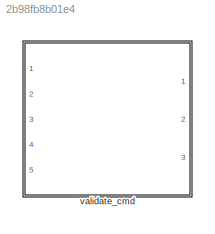
MODEL slx_2b98fb8b01e4
KIND library
CONFIG AbsTol = auto
CONFIG EnableMultiTasking = on
CONFIG FixedStep = 0.001
CONFIG MaxStep = auto
CONFIG MinStep = auto
CONFIG PostLoadFcn = , if any(exist('dsrtsu_mdlpostloadfcn', 'file') == [2, 3, 6]), try dsrtsu_mdlpostloadfcn('Execute', bdroot); catch fprintf('Error in PostLoadFcn (dsrtsu_mdlpostloadfcn) for model "%s":\n %s\n', bdroot, lasterr); end, end, \nif exist('tl_postloadfcn','file'), tl_postloadfcn(gcs,'5.0.0.24'); end
CONFIG PreLoadFcn = if exist('tl_preloadfcn','file'), tl_preloadfcn(gcs,'5.0.0.24'); end
CONFIG RelTol = 1e-3
CONFIG SampleTimeConstraint = Unconstrained
CONFIG Solver = ode1
CONFIG SolverName = ode1
CONFIG StartTime = 0.0
CONFIG StopTime = Inf
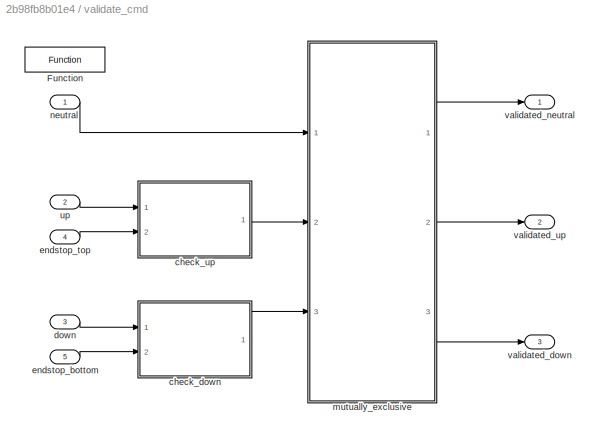
BLOCK [SubSystem] validate_cmd
  Ports = [5, 3]
  RequestExecContextInheritance = off
  TreatAsAtomicUnit = on
BLOCK [Reference] validate_cmd/Function  REF=tllib/Function
  Ports = []
  SourceBlock = tllib/Function
  SourceProductName = dSPACE TargetLink common blockset
  SourceType = TL_Function
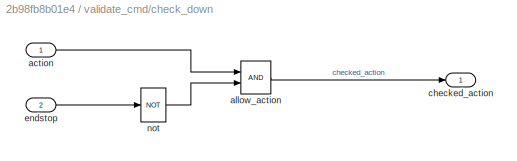
BLOCK [SubSystem] validate_cmd/check_down
  Ports = [2, 1]
  RequestExecContextInheritance = off
BLOCK [Inport] validate_cmd/check_down/action
  IconDisplay = Port number
BLOCK [Logic] validate_cmd/check_down/allow_action
  CopyFcn = if exist('copy_tlblock','file')==2,copy_tlblock(gcbh);end
  DeleteFcn = if exist('delete_tlblock','file')==2,delete_tlblock(gcbh);end
  NameChangeFcn = if exist('rename_tlblock','file')==2,rename_tlblock(gcbh);end
  OpenFcn = if exist('tl_open_blockdlg','file')==2,tl_open_blockdlg(gcbh);else,open_system(gcbh,'force');end
  Ports = [2, 1]
BLOCK [Outport] validate_cmd/check_down/checked_action
  IconDisplay = Port number
BLOCK [Inport] validate_cmd/check_down/endstop
  IconDisplay = Port number
  Port = 2
BLOCK [Logic] validate_cmd/check_down/not
  CopyFcn = if exist('copy_tlblock','file')==2,copy_tlblock(gcbh);end
  DeleteFcn = if exist('delete_tlblock','file')==2,delete_tlblock(gcbh);end
  Inputs = 1
  NameChangeFcn = if exist('rename_tlblock','file')==2,rename_tlblock(gcbh);end
  OpenFcn = if exist('tl_open_blockdlg','file')==2,tl_open_blockdlg(gcbh);else,open_system(gcbh,'force');end
  Operator = NOT
  Ports = [1, 1]
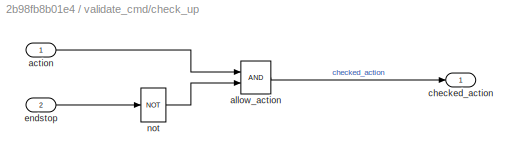
BLOCK [SubSystem] validate_cmd/check_up
  Ports = [2, 1]
  RequestExecContextInheritance = off
BLOCK [Inport] validate_cmd/check_up/action
  IconDisplay = Port number
BLOCK [Logic] validate_cmd/check_up/allow_action
  CopyFcn = if exist('copy_tlblock','file')==2,copy_tlblock(gcbh);end
  DeleteFcn = if exist('delete_tlblock','file')==2,delete_tlblock(gcbh);end
  NameChangeFcn = if exist('rename_tlblock','file')==2,rename_tlblock(gcbh);end
  OpenFcn = if exist('tl_open_blockdlg','file')==2,tl_open_blockdlg(gcbh);else,open_system(gcbh,'force');end
  Ports = [2, 1]
BLOCK [Outport] validate_cmd/check_up/checked_action
  IconDisplay = Port number
BLOCK [Inport] validate_cmd/check_up/endstop
  IconDisplay = Port number
  Port = 2
BLOCK [Logic] validate_cmd/check_up/not
  CopyFcn = if exist('copy_tlblock','file')==2,copy_tlblock(gcbh);end
  DeleteFcn = if exist('delete_tlblock','file')==2,delete_tlblock(gcbh);end
  Inputs = 1
  NameChangeFcn = if exist('rename_tlblock','file')==2,rename_tlblock(gcbh);end
  OpenFcn = if exist('tl_open_blockdlg','file')==2,tl_open_blockdlg(gcbh);else,open_system(gcbh,'force');end
  Operator = NOT
  Ports = [1, 1]
BLOCK [Inport] validate_cmd/down
  CopyFcn = if exist('copy_tlblock','file')==2,copy_tlblock(gcbh);end
  DeleteFcn = if exist('delete_tlblock','file')==2,delete_tlblock(gcbh);end
  IconDisplay = Port number
  NameChangeFcn = if exist('rename_tlblock','file')==2,rename_tlblock(gcbh);end
  OpenFcn = if exist('tl_open_blockdlg','file')==2,tl_open_blockdlg(gcbh);else,open_system(gcbh,'force');end
  Port = 3
BLOCK [Inport] validate_cmd/endstop_bottom
  CopyFcn = if exist('copy_tlblock','file')==2,copy_tlblock(gcbh);end
  DeleteFcn = if exist('delete_tlblock','file')==2,delete_tlblock(gcbh);end
  IconDisplay = Port number
  NameChangeFcn = if exist('rename_tlblock','file')==2,rename_tlblock(gcbh);end
  OpenFcn = if exist('tl_open_blockdlg','file')==2,tl_open_blockdlg(gcbh);else,open_system(gcbh,'force');end
  Port = 5
BLOCK [Inport] validate_cmd/endstop_top
  CopyFcn = if exist('copy_tlblock','file')==2,copy_tlblock(gcbh);end
  DeleteFcn = if exist('delete_tlblock','file')==2,delete_tlblock(gcbh);end
  IconDisplay = Port number
  NameChangeFcn = if exist('rename_tlblock','file')==2,rename_tlblock(gcbh);end
  OpenFcn = if exist('tl_open_blockdlg','file')==2,tl_open_blockdlg(gcbh);else,open_system(gcbh,'force');end
  Port = 4
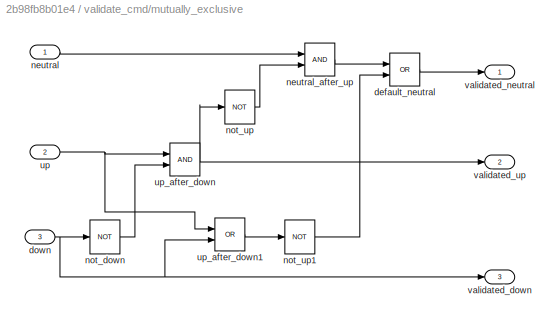
BLOCK [SubSystem] validate_cmd/mutually_exclusive
  Ports = [3, 3]
  RequestExecContextInheritance = off
BLOCK [Logic] validate_cmd/mutually_exclusive/default_neutral
  CopyFcn = if exist('copy_tlblock','file')==2,copy_tlblock(gcbh);end
  DeleteFcn = if exist('delete_tlblock','file')==2,delete_tlblock(gcbh);end
  NameChangeFcn = if exist('rename_tlblock','file')==2,rename_tlblock(gcbh);end
  OpenFcn = if exist('tl_open_blockdlg','file')==2,tl_open_blockdlg(gcbh);else,open_system(gcbh,'force');end
  Operator = OR
  Ports = [2, 1]
BLOCK [Inport] validate_cmd/mutually_exclusive/down
  IconDisplay = Port number
  Port = 3
BLOCK [Inport] validate_cmd/mutually_exclusive/neutral
  IconDisplay = Port number
BLOCK [Logic] validate_cmd/mutually_exclusive/neutral_after_up
  CopyFcn = if exist('copy_tlblock','file')==2,copy_tlblock(gcbh);end
  DeleteFcn = if exist('delete_tlblock','file')==2,delete_tlblock(gcbh);end
  NameChangeFcn = if exist('rename_tlblock','file')==2,rename_tlblock(gcbh);end
  OpenFcn = if exist('tl_open_blockdlg','file')==2,tl_open_blockdlg(gcbh);else,open_system(gcbh,'force');end
  Ports = [2, 1]
BLOCK [Logic] validate_cmd/mutually_exclusive/not_down
  CopyFcn = if exist('copy_tlblock','file')==2,copy_tlblock(gcbh);end
  DeleteFcn = if exist('delete_tlblock','file')==2,delete_tlblock(gcbh);end
  Inputs = 1
  NameChangeFcn = if exist('rename_tlblock','file')==2,rename_tlblock(gcbh);end
  OpenFcn = if exist('tl_open_blockdlg','file')==2,tl_open_blockdlg(gcbh);else,open_system(gcbh,'force');end
  Operator = NOT
  Ports = [1, 1]
BLOCK [Logic] validate_cmd/mutually_exclusive/not_up
  CopyFcn = if exist('copy_tlblock','file')==2,copy_tlblock(gcbh);end
  DeleteFcn = if exist('delete_tlblock','file')==2,delete_tlblock(gcbh);end
  Inputs = 1
  NameChangeFcn = if exist('rename_tlblock','file')==2,rename_tlblock(gcbh);end
  OpenFcn = if exist('tl_open_blockdlg','file')==2,tl_open_blockdlg(gcbh);else,open_system(gcbh,'force');end
  Operator = NOT
  Ports = [1, 1]
BLOCK [Logic] validate_cmd/mutually_exclusive/not_up1
  CopyFcn = if exist('copy_tlblock','file')==2,copy_tlblock(gcbh);end
  DeleteFcn = if exist('delete_tlblock','file')==2,delete_tlblock(gcbh);end
  Inputs = 1
  NameChangeFcn = if exist('rename_tlblock','file')==2,rename_tlblock(gcbh);end
  OpenFcn = if exist('tl_open_blockdlg','file')==2,tl_open_blockdlg(gcbh);else,open_system(gcbh,'force');end
  Operator = NOT
  Ports = [1, 1]
BLOCK [Inport] validate_cmd/mutually_exclusive/up
  IconDisplay = Port number
  Port = 2
BLOCK [Logic] validate_cmd/mutually_exclusive/up_after_down
  CopyFcn = if exist('copy_tlblock','file')==2,copy_tlblock(gcbh);end
  DeleteFcn = if exist('delete_tlblock','file')==2,delete_tlblock(gcbh);end
  NameChangeFcn = if exist('rename_tlblock','file')==2,rename_tlblock(gcbh);end
  OpenFcn = if exist('tl_open_blockdlg','file')==2,tl_open_blockdlg(gcbh);else,open_system(gcbh,'force');end
  Ports = [2, 1]
BLOCK [Logic] validate_cmd/mutually_exclusive/up_after_down1
  CopyFcn = if exist('copy_tlblock','file')==2,copy_tlblock(gcbh);end
  DeleteFcn = if exist('delete_tlblock','file')==2,delete_tlblock(gcbh);end
  NameChangeFcn = if exist('rename_tlblock','file')==2,rename_tlblock(gcbh);end
  OpenFcn = if exist('tl_open_blockdlg','file')==2,tl_open_blockdlg(gcbh);else,open_system(gcbh,'force');end
  Operator = OR
  Ports = [2, 1]
BLOCK [Outport] validate_cmd/mutually_exclusive/validated_down
  IconDisplay = Port number
  Port = 3
BLOCK [Outport] validate_cmd/mutually_exclusive/validated_neutral
  IconDisplay = Port number
BLOCK [Outport] validate_cmd/mutually_exclusive/validated_up
  IconDisplay = Port number
  Port = 2
BLOCK [Inport] validate_cmd/neutral
  CopyFcn = if exist('copy_tlblock','file')==2,copy_tlblock(gcbh);end
  DeleteFcn = if exist('delete_tlblock','file')==2,delete_tlblock(gcbh);end
  IconDisplay = Port number
  NameChangeFcn = if exist('rename_tlblock','file')==2,rename_tlblock(gcbh);end
  OpenFcn = if exist('tl_open_blockdlg','file')==2,tl_open_blockdlg(gcbh);else,open_system(gcbh,'force');end
BLOCK [Inport] validate_cmd/up
  CopyFcn = if exist('copy_tlblock','file')==2,copy_tlblock(gcbh);end
  DeleteFcn = if exist('delete_tlblock','file')==2,delete_tlblock(gcbh);end
  IconDisplay = Port number
  NameChangeFcn = if exist('rename_tlblock','file')==2,rename_tlblock(gcbh);end
  OpenFcn = if exist('tl_open_blockdlg','file')==2,tl_open_blockdlg(gcbh);else,open_system(gcbh,'force');end
  Port = 2
BLOCK [Outport] validate_cmd/validated_down
  CopyFcn = if exist('copy_tlblock','file')==2,copy_tlblock(gcbh);end
  DeleteFcn = if exist('delete_tlblock','file')==2,delete_tlblock(gcbh);end
  IconDisplay = Port number
  NameChangeFcn = if exist('rename_tlblock','file')==2,rename_tlblock(gcbh);end
  OpenFcn = if exist('tl_open_blockdlg','file')==2,tl_open_blockdlg(gcbh);else,open_system(gcbh,'force');end
  Port = 3
BLOCK [Outport] validate_cmd/validated_neutral
  CopyFcn = if exist('copy_tlblock','file')==2,copy_tlblock(gcbh);end
  DeleteFcn = if exist('delete_tlblock','file')==2,delete_tlblock(gcbh);end
  IconDisplay = Port number
  NameChangeFcn = if exist('rename_tlblock','file')==2,rename_tlblock(gcbh);end
  OpenFcn = if exist('tl_open_blockdlg','file')==2,tl_open_blockdlg(gcbh);else,open_system(gcbh,'force');end
BLOCK [Outport] validate_cmd/validated_up
  CopyFcn = if exist('copy_tlblock','file')==2,copy_tlblock(gcbh);end
  DeleteFcn = if exist('delete_tlblock','file')==2,delete_tlblock(gcbh);end
  IconDisplay = Port number
  NameChangeFcn = if exist('rename_tlblock','file')==2,rename_tlblock(gcbh);end
  OpenFcn = if exist('tl_open_blockdlg','file')==2,tl_open_blockdlg(gcbh);else,open_system(gcbh,'force');end
  Port = 2
LINE validate_cmd/check_down/action:1 -> validate_cmd/check_down/allow_action:1
LINE validate_cmd/check_down/allow_action:1 -> validate_cmd/check_down/checked_action:1
LINE validate_cmd/check_down/endstop:1 -> validate_cmd/check_down/not:1
LINE validate_cmd/check_down/not:1 -> validate_cmd/check_down/allow_action:2
LINE validate_cmd/check_down:1 -> validate_cmd/mutually_exclusive:3
LINE validate_cmd/check_up/action:1 -> validate_cmd/check_up/allow_action:1
LINE validate_cmd/check_up/allow_action:1 -> validate_cmd/check_up/checked_action:1
LINE validate_cmd/check_up/endstop:1 -> validate_cmd/check_up/not:1
LINE validate_cmd/check_up/not:1 -> validate_cmd/check_up/allow_action:2
LINE validate_cmd/check_up:1 -> validate_cmd/mutually_exclusive:2
LINE validate_cmd/down:1 -> validate_cmd/check_down:1
LINE validate_cmd/endstop_bottom:1 -> validate_cmd/check_down:2
LINE validate_cmd/endstop_top:1 -> validate_cmd/check_up:2
LINE validate_cmd/mutually_exclusive/default_neutral:1 -> validate_cmd/mutually_exclusive/validated_neutral:1
NET validate_cmd/mutually_exclusive/down:1 -> validate_cmd/mutually_exclusive/not_down:1, validate_cmd/mutually_exclusive/up_after_down1:2, validate_cmd/mutually_exclusive/validated_down:1
LINE validate_cmd/mutually_exclusive/neutral:1 -> validate_cmd/mutually_exclusive/neutral_after_up:1
LINE validate_cmd/mutually_exclusive/neutral_after_up:1 -> validate_cmd/mutually_exclusive/default_neutral:1
LINE validate_cmd/mutually_exclusive/not_down:1 -> validate_cmd/mutually_exclusive/up_after_down:2
LINE validate_cmd/mutually_exclusive/not_up1:1 -> validate_cmd/mutually_exclusive/default_neutral:2
LINE validate_cmd/mutually_exclusive/not_up:1 -> validate_cmd/mutually_exclusive/neutral_after_up:2
NET validate_cmd/mutually_exclusive/up:1 -> validate_cmd/mutually_exclusive/up_after_down1:1, validate_cmd/mutually_exclusive/up_after_down:1
LINE validate_cmd/mutually_exclusive/up_after_down1:1 -> validate_cmd/mutually_exclusive/not_up1:1
NET validate_cmd/mutually_exclusive/up_after_down:1 -> validate_cmd/mutually_exclusive/not_up:1, validate_cmd/mutually_exclusive/validated_up:1
LINE validate_cmd/mutually_exclusive:1 -> validate_cmd/validated_neutral:1
LINE validate_cmd/mutually_exclusive:2 -> validate_cmd/validated_up:1
LINE validate_cmd/mutually_exclusive:3 -> validate_cmd/validated_down:1
LINE validate_cmd/neutral:1 -> validate_cmd/mutually_exclusive:1
LINE validate_cmd/up:1 -> validate_cmd/check_up:1
note: NET lines group one-source signal fan-out (src -> all destinations, sorted); 1:1 wires keep LINE
